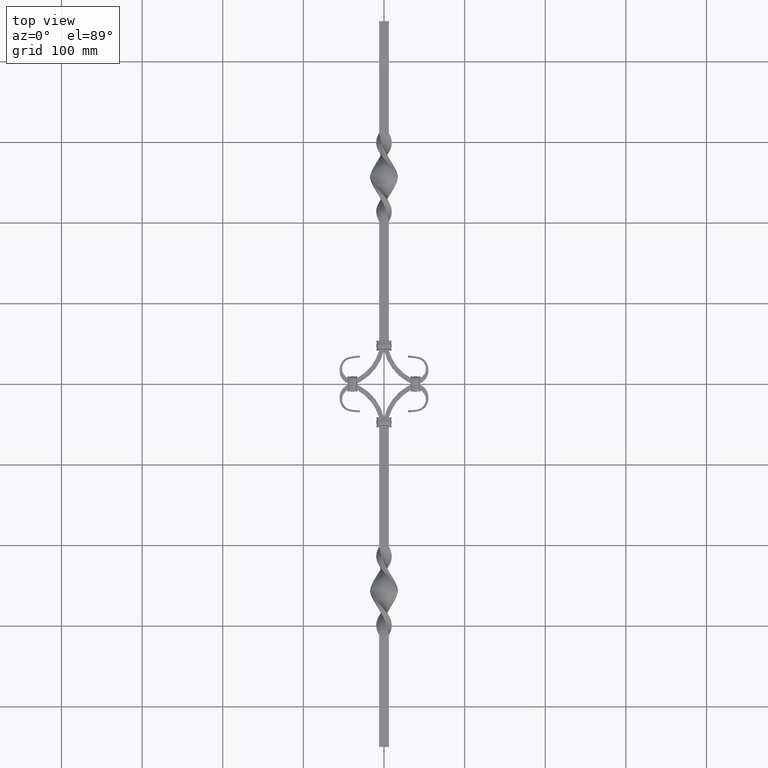
[diagram: clean part render]
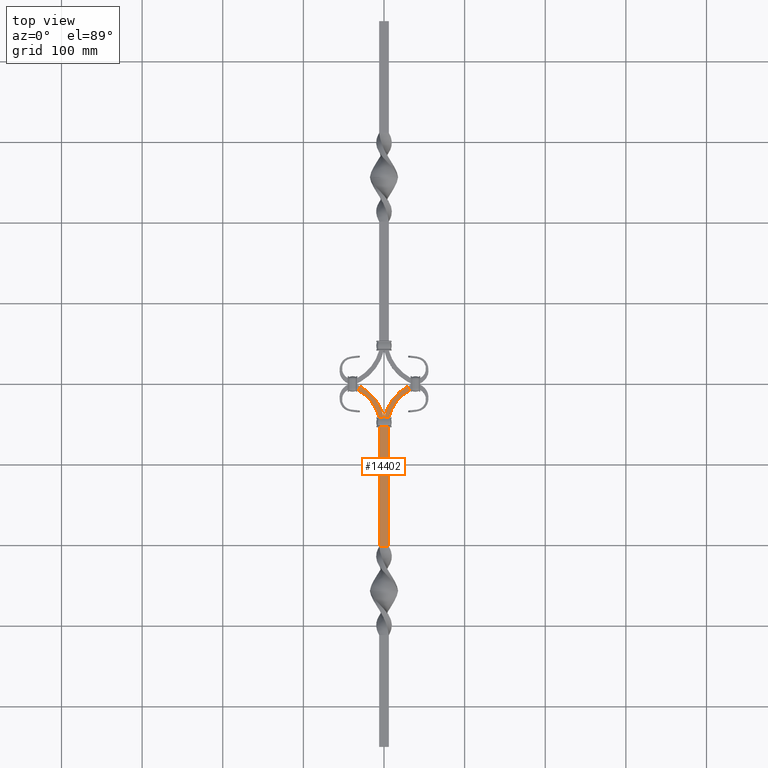
[diagram: same view with one face highlighted and labeled with its STEP entity id]
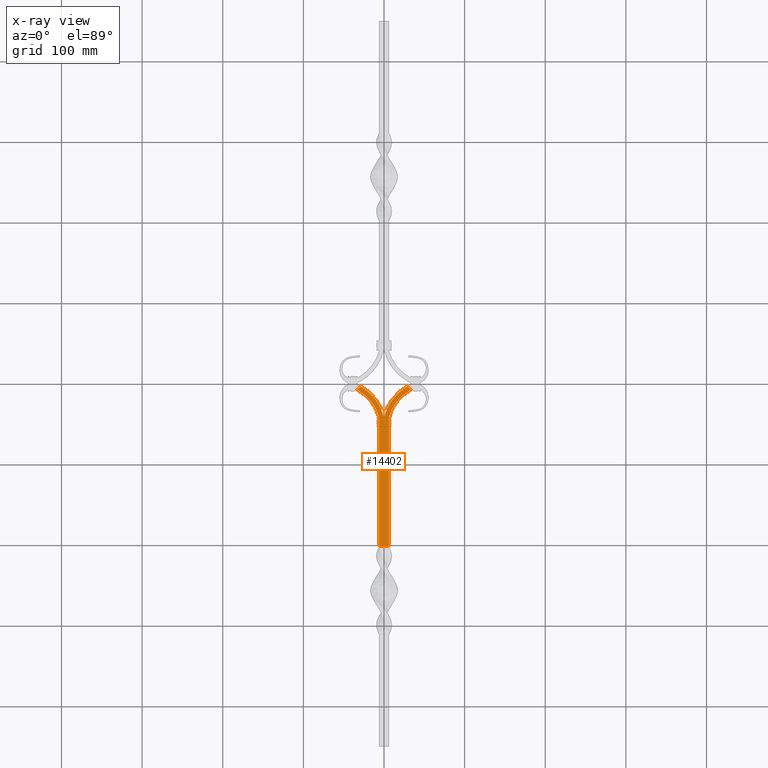
[diagram: x-ray of the same camera — body ghosted, the highlighted face saturated]
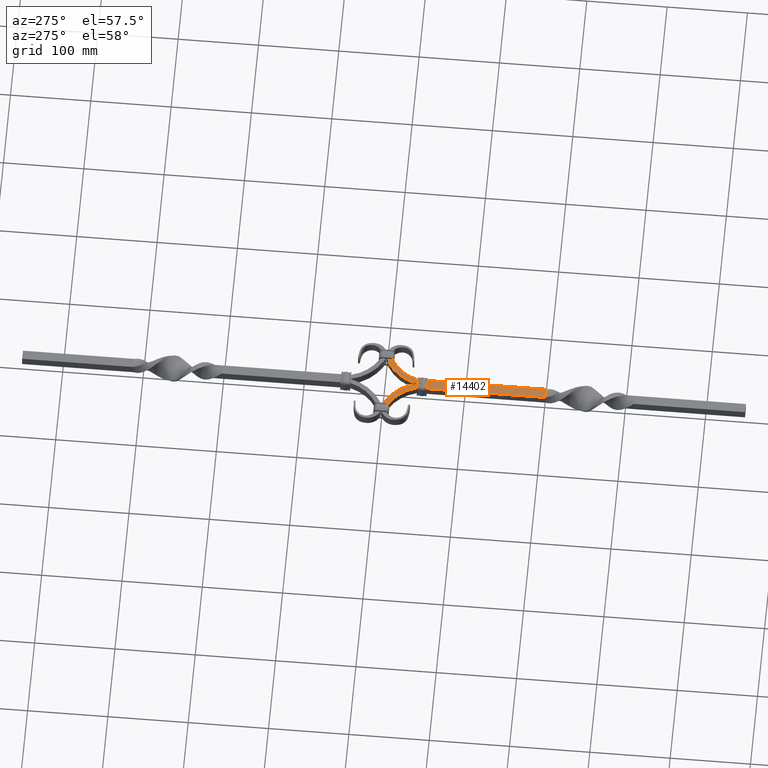
[diagram: same view with one face highlighted and labeled with its STEP entity id]
A machine part, top view. The second image highlights one B-rep face of the part: STEP entity #14402.
The next image is the same camera in x-ray: the body ghosted, the highlighted face saturated — about 0% of this face is hidden behind the body in this view.
A second angle (auxiliary view) of the same face is appended — the face is thin or edge-on in the first view.
In plain terms, the highlighted planar face has unit normal (0, -0, -1).
Its self-contained STEP definition (entity closure, byte-faithful):
#71 = DIRECTION ( 'NONE',  ( -0.000000000000000000, -0.000000000000000000, -1.000000000000000000 ) ) ;
#1338 = VECTOR ( 'NONE', #10554, 1000.000000000000114 ) ;
#1645 = CARTESIAN_POINT ( 'NONE',  ( 28.66998436362908365, -3.283527302116791446, 5.999999917361111379 ) ) ;
#1758 = CARTESIAN_POINT ( 'NONE',  ( 32.78314722825024319, -7.582875072314088527, 6.000000000000043521 ) ) ;
#1900 = CARTESIAN_POINT ( 'NONE',  ( 5.999999833333287569, -63.00000000000000000, 6.000000000000042633 ) ) ;
#2270 = CIRCLE ( 'NONE', #3073, 60.76278943633926133 ) ;
#2378 = CARTESIAN_POINT ( 'NONE',  ( -6.000000000000043521, -201.4999999999999147, 5.999999999999957367 ) ) ;
#2384 = CIRCLE ( 'NONE', #13535, 60.76278943633926133 ) ;
#2779 = AXIS2_PLACEMENT_3D ( 'NONE', #12348, #71, #14167 ) ;
#2837 = ORIENTED_EDGE ( 'NONE', *, *, #15434, .T. ) ;
#3073 = AXIS2_PLACEMENT_3D ( 'NONE', #11245, #28522, #28424 ) ;
#3932 = CARTESIAN_POINT ( 'NONE',  ( -6.000000000000044409, -155.3333333333333144, 5.999999999999956479 ) ) ;
#4071 = DIRECTION ( 'NONE',  ( 0.000000000000000000, -0.000000000000000000, 1.000000000000000000 ) ) ;
#4647 = CARTESIAN_POINT ( 'NONE',  ( 5.999999833333287569, -63.00000000000000000, 6.000000000000042633 ) ) ;
#5151 = CARTESIAN_POINT ( 'NONE',  ( -32.78314722825023608, -7.582875072314094744, 6.000000000000043521 ) ) ;
#5175 = CARTESIAN_POINT ( 'NONE',  ( -6.000000000000044409, -24.52943725152274013, 5.999999833333291122 ) ) ;
#5349 = VERTEX_POINT ( 'NONE', #1645 ) ;
#5787 = LINE ( 'NONE', #5175, #8818 ) ;
#6039 = ORIENTED_EDGE ( 'NONE', *, *, #6700, .F. ) ;
#6047 = VERTEX_POINT ( 'NONE', #27151 ) ;
#6068 = CARTESIAN_POINT ( 'NONE',  ( -32.78314722825024319, -7.582875072314088527, 6.000000000000043521 ) ) ;
#6216 = CARTESIAN_POINT ( 'NONE',  ( 6.000008014367372411, -201.4999958031108349, 5.999999876760604423 ) ) ;
#6278 = EDGE_CURVE ( 'NONE', #29982, #25544, #24121, .T. ) ;
#6355 = ORIENTED_EDGE ( 'NONE', *, *, #25032, .T. ) ;
#6491 = CIRCLE ( 'NONE', #2779, 54.99999999999999289 ) ;
#6682 = VECTOR ( 'NONE', #15430, 999.9999999999998863 ) ;
#6700 = EDGE_CURVE ( 'NONE', #13168, #28798, #19690, .T. ) ;
#7805 = CARTESIAN_POINT ( 'NONE',  ( -6.000000000000044409, -63.00000000000000000, 5.999999999999956479 ) ) ;
#8381 = DIRECTION ( 'NONE',  ( 8.591735456650550102E-18, -1.000000000000000000, 4.456787267672614845E-18 ) ) ;
#8795 = EDGE_CURVE ( 'NONE', #25544, #16939, #19500, .T. ) ;
#8818 = VECTOR ( 'NONE', #10073, 1000.000000000000000 ) ;
#9322 = LINE ( 'NONE', #12784, #1338 ) ;
#9840 = DIRECTION ( 'NONE',  ( 0.9715685761218874061, 0.2367583195845254507, 0.000000000000000000 ) ) ;
#9853 = CARTESIAN_POINT ( 'NONE',  ( 5.999999999999954703, -109.1666666666666856, 6.000000000000042633 ) ) ;
#10073 = DIRECTION ( 'NONE',  ( 8.591735456650550102E-18, -1.000000000000000000, 4.456787267672614845E-18 ) ) ;
#10554 = DIRECTION ( 'NONE',  ( 0.9999999999999998890, 0.000000000000000000, 1.388889615793392301E-08 ) ) ;
#11245 = CARTESIAN_POINT ( 'NONE',  ( 59.08521664719157940, -55.88609592021603589, 5.999999917361111379 ) ) ;
#11709 = EDGE_LOOP ( 'NONE', ( #15576, #26885, #6355, #29747, #20530, #15011, #2837, #6039, #23510, #31630, #27347, #21407 ) ) ;
#12014 = DIRECTION ( 'NONE',  ( 0.000000000000000000, -0.000000000000000000, 1.000000000000000000 ) ) ;
#12127 = CARTESIAN_POINT ( 'NONE',  ( 5.999999999999955591, -155.3333333333332575, 6.000000000000043521 ) ) ;
#12348 = CARTESIAN_POINT ( 'NONE',  ( 59.08521664719157940, -55.88609592021603589, 6.000000000000043521 ) ) ;
#12784 = CARTESIAN_POINT ( 'NONE',  ( -6.000000000000044409, -41.50000000000000000, 5.999999833333291122 ) ) ;
#13168 = VERTEX_POINT ( 'NONE', #6068 ) ;
#13476 = LINE ( 'NONE', #22899, #24182 ) ;
#13535 = AXIS2_PLACEMENT_3D ( 'NONE', #24214, #12014, #9840 ) ;
#14167 = DIRECTION ( 'NONE',  ( -0.9651857602519690049, 0.2615653803675643818, 0.000000000000000000 ) ) ;
#14305 = CARTESIAN_POINT ( 'NONE',  ( -5.999912603202407269, -201.4999898177597402, 6.000000037428977251 ) ) ;
#14402 = ADVANCED_FACE ( 'NONE', ( #21923 ), #24703, .F. ) ;
#15011 = ORIENTED_EDGE ( 'NONE', *, *, #20750, .F. ) ;
#15430 = DIRECTION ( 'NONE',  ( 0.6912878764069255721, 0.7225794571760277840, -1.388889616061434553E-08 ) ) ;
#15434 = EDGE_CURVE ( 'NONE', #6047, #28798, #2384, .T. ) ;
#15576 = ORIENTED_EDGE ( 'NONE', *, *, #6278, .F. ) ;
#16676 = CARTESIAN_POINT ( 'NONE',  ( -59.08521664719157940, -55.88609592021603589, 6.000000000000043521 ) ) ;
#16939 = VERTEX_POINT ( 'NONE', #14305 ) ;
#19448 = VERTEX_POINT ( 'NONE', #1758 ) ;
#19494 = CARTESIAN_POINT ( 'NONE',  ( 6.000008014367372411, -201.4999958031108349, 5.999999876760604423 ) ) ;
#19500 = LINE ( 'NONE', #2378, #30311 ) ;
#19654 = B_SPLINE_CURVE_WITH_KNOTS ( 'NONE', 3,
 ( #30836, #28375, #3932, #21072 ),
 .UNSPECIFIED., .F., .F.,
 ( 4, 4 ),
 ( 0.000000000000000000, 1.000000000000000000 ),
 .UNSPECIFIED. ) ;
#19690 = LINE ( 'NONE', #5151, #6682 ) ;
#19799 = EDGE_CURVE ( 'NONE', #26194, #29982, #27374, .T. ) ;
#19992 = DIRECTION ( 'NONE',  ( 7.055242822518633410E-15, -4.456787267672553216E-18, -1.000000000000000000 ) ) ;
#20083 = CARTESIAN_POINT ( 'NONE',  ( 0.04999983333337735397, -41.50000000000000000, 5.999999917361110491 ) ) ;
#20308 = DIRECTION ( 'NONE',  ( -0.6912878764069255721, 0.7225794571760277840, -1.388889616061434553E-08 ) ) ;
#20453 = AXIS2_PLACEMENT_3D ( 'NONE', #16676, #4071, #21203 ) ;
#20530 = ORIENTED_EDGE ( 'NONE', *, *, #29516, .F. ) ;
#20750 = EDGE_CURVE ( 'NONE', #6047, #25913, #9322, .T. ) ;
#20888 = CARTESIAN_POINT ( 'NONE',  ( -6.000000000000044409, -63.00000000000000000, 5.999999833333291122 ) ) ;
#21072 = CARTESIAN_POINT ( 'NONE',  ( -5.999912603202407269, -201.4999898177597402, 6.000000037428977251 ) ) ;
#21137 = EDGE_CURVE ( 'NONE', #22219, #13168, #28489, .T. ) ;
#21203 = DIRECTION ( 'NONE',  ( 0.9651857602519690049, 0.2615653803675643818, 0.000000000000000000 ) ) ;
#21285 = CARTESIAN_POINT ( 'NONE',  ( -28.66998436362908365, -3.283527302116791446, 5.999999917361111379 ) ) ;
#21407 = ORIENTED_EDGE ( 'NONE', *, *, #8795, .F. ) ;
#21547 = VERTEX_POINT ( 'NONE', #20888 ) ;
#21923 = FACE_OUTER_BOUND ( 'NONE', #11709, .T. ) ;
#22219 = VERTEX_POINT ( 'NONE', #23607 ) ;
#22899 = CARTESIAN_POINT ( 'NONE',  ( 32.78314722825023608, -7.582875072314094744, 6.000000000000043521 ) ) ;
#23075 = CARTESIAN_POINT ( 'NONE',  ( 5.999999833333287569, -24.52943725152274013, 6.000000000000042633 ) ) ;
#23467 = EDGE_CURVE ( 'NONE', #19448, #5349, #13476, .T. ) ;
#23510 = ORIENTED_EDGE ( 'NONE', *, *, #21137, .F. ) ;
#23607 = CARTESIAN_POINT ( 'NONE',  ( -6.000000000000044409, -41.50000000000000000, 5.999999833333292010 ) ) ;
#23856 = EDGE_CURVE ( 'NONE', #21547, #16939, #19654, .T. ) ;
#24121 = B_SPLINE_CURVE_WITH_KNOTS ( 'NONE', 3,
 ( #4647, #9853, #12127, #19494 ),
 .UNSPECIFIED., .F., .F.,
 ( 4, 4 ),
 ( 0.000000000000000000, 1.000000000000000000 ),
 .UNSPECIFIED. ) ;
#24182 = VECTOR ( 'NONE', #20308, 999.9999999999998863 ) ;
#24214 = CARTESIAN_POINT ( 'NONE',  ( -59.08521664719157940, -55.88609592021603589, 5.999999917361111379 ) ) ;
#24429 = DIRECTION ( 'NONE',  ( -1.000000000000000000, -8.591735456650580917E-18, -7.055242822518633410E-15 ) ) ;
#24703 = PLANE ( 'NONE',  #28530 ) ;
#24966 = CARTESIAN_POINT ( 'NONE',  ( 5.999999833333287569, -41.50000000000000000, 6.000000000000042633 ) ) ;
#25032 = EDGE_CURVE ( 'NONE', #26194, #19448, #6491, .T. ) ;
#25481 = VECTOR ( 'NONE', #8381, 1000.000000000000000 ) ;
#25544 = VERTEX_POINT ( 'NONE', #6216 ) ;
#25913 = VERTEX_POINT ( 'NONE', #20083 ) ;
#26194 = VERTEX_POINT ( 'NONE', #24966 ) ;
#26885 = ORIENTED_EDGE ( 'NONE', *, *, #19799, .F. ) ;
#27064 = DIRECTION ( 'NONE',  ( -1.000000000000000000, -8.591735456650580917E-18, -7.055242822518633410E-15 ) ) ;
#27151 = CARTESIAN_POINT ( 'NONE',  ( -0.04999983333337908870, -41.50000000000000000, 5.999999915972225928 ) ) ;
#27347 = ORIENTED_EDGE ( 'NONE', *, *, #23856, .T. ) ;
#27374 = LINE ( 'NONE', #23075, #25481 ) ;
#28156 = EDGE_CURVE ( 'NONE', #22219, #21547, #5787, .T. ) ;
#28375 = CARTESIAN_POINT ( 'NONE',  ( -6.000000000000044409, -109.1666666666666856, 5.999999999999956479 ) ) ;
#28424 = DIRECTION ( 'NONE',  ( -0.9715685761218874061, 0.2367583195845254507, 0.000000000000000000 ) ) ;
#28489 = CIRCLE ( 'NONE', #20453, 54.99999999999999289 ) ;
#28522 = DIRECTION ( 'NONE',  ( -0.000000000000000000, -0.000000000000000000, -1.000000000000000000 ) ) ;
#28530 = AXIS2_PLACEMENT_3D ( 'NONE', #7805, #19992, #27064 ) ;
#28798 = VERTEX_POINT ( 'NONE', #21285 ) ;
#29516 = EDGE_CURVE ( 'NONE', #25913, #5349, #2270, .T. ) ;
#29747 = ORIENTED_EDGE ( 'NONE', *, *, #23467, .T. ) ;
#29982 = VERTEX_POINT ( 'NONE', #1900 ) ;
#30311 = VECTOR ( 'NONE', #24429, 1000.000000000000000 ) ;
#30836 = CARTESIAN_POINT ( 'NONE',  ( -6.000000000000044409, -63.00000000000000000, 5.999999833333291122 ) ) ;
#31630 = ORIENTED_EDGE ( 'NONE', *, *, #28156, .T. ) ;